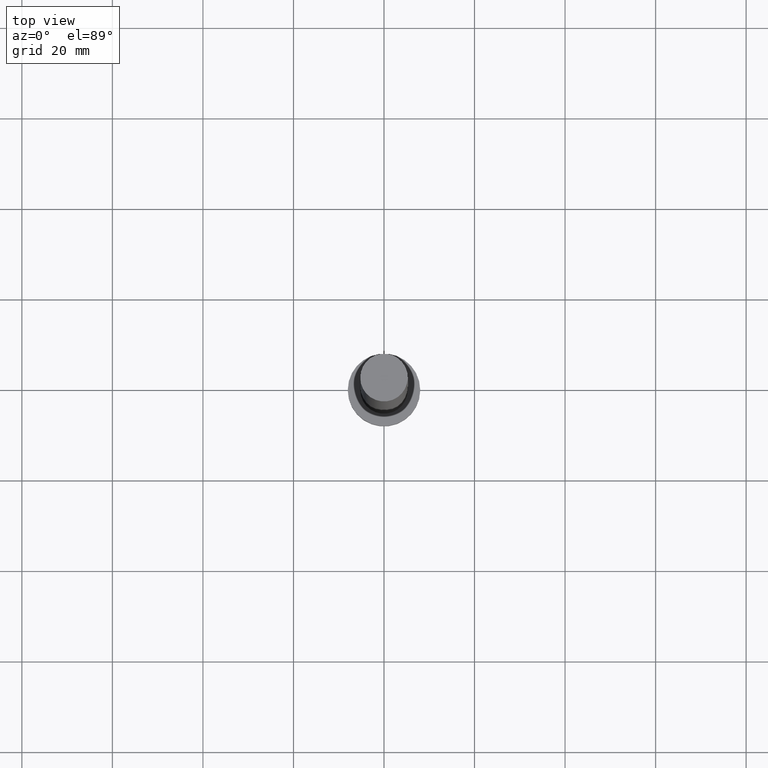
[diagram: clean part render]
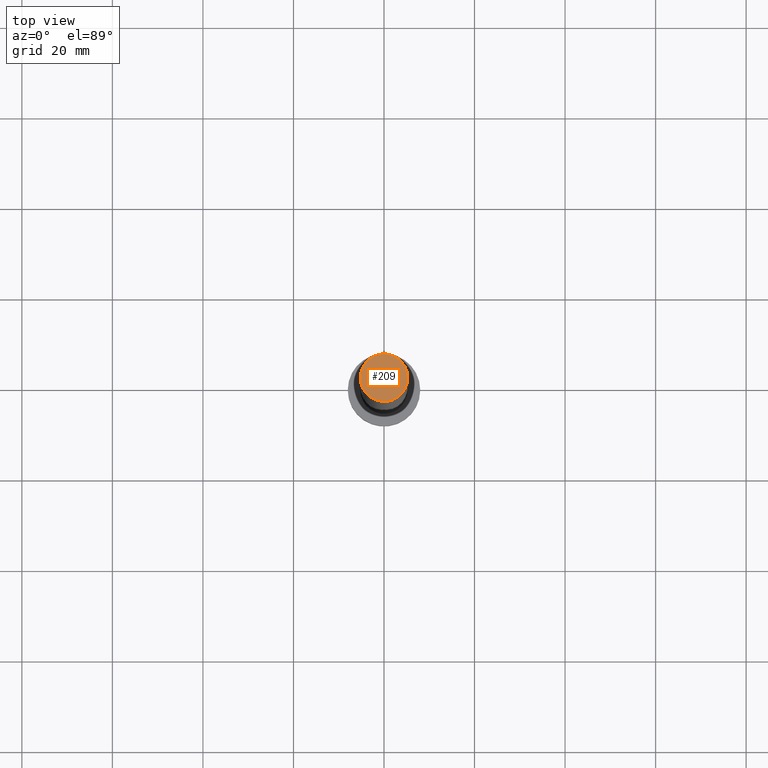
[diagram: same view with one face highlighted and labeled with its STEP entity id]
A machine part, top view. The second image highlights one B-rep face of the part: STEP entity #209.
In plain terms, the highlighted planar face has unit normal (0, 0, 1).
Its self-contained STEP definition (entity closure, byte-faithful):
#9 = CARTESIAN_POINT ( 'NONE',  ( 0.000000000000000000, 0.000000000000000000, 160.0000000000000000 ) ) ;
#11 = ORIENTED_EDGE ( 'NONE', *, *, #114, .T. ) ;
#22 = CARTESIAN_POINT ( 'NONE',  ( 5.250000000000000888, 6.429395695523605139E-16, 160.0000000000000000 ) ) ;
#28 = AXIS2_PLACEMENT_3D ( 'NONE', #92, #212, #237 ) ;
#92 = CARTESIAN_POINT ( 'NONE',  ( 0.000000000000000000, 0.000000000000000000, 160.0000000000000000 ) ) ;
#114 = EDGE_CURVE ( 'NONE', #245, #124, #250, .T. ) ;
#115 = AXIS2_PLACEMENT_3D ( 'NONE', #169, #145, #187 ) ;
#122 = ORIENTED_EDGE ( 'NONE', *, *, #132, .T. ) ;
#124 = VERTEX_POINT ( 'NONE', #22 ) ;
#132 = EDGE_CURVE ( 'NONE', #124, #245, #156, .T. ) ;
#145 = DIRECTION ( 'NONE',  ( 0.000000000000000000, 0.000000000000000000, 1.000000000000000000 ) ) ;
#156 = CIRCLE ( 'NONE', #115, 5.250000000000000888 ) ;
#169 = CARTESIAN_POINT ( 'NONE',  ( 0.000000000000000000, 0.000000000000000000, 160.0000000000000000 ) ) ;
#175 = DIRECTION ( 'NONE',  ( 0.000000000000000000, 0.000000000000000000, 1.000000000000000000 ) ) ;
#179 = FACE_OUTER_BOUND ( 'NONE', #246, .T. ) ;
#187 = DIRECTION ( 'NONE',  ( 1.000000000000000000, 0.000000000000000000, 0.000000000000000000 ) ) ;
#194 = PLANE ( 'NONE',  #202 ) ;
#202 = AXIS2_PLACEMENT_3D ( 'NONE', #9, #175, #242 ) ;
#209 = ADVANCED_FACE ( 'NONE', ( #179 ), #194, .T. ) ;
#212 = DIRECTION ( 'NONE',  ( 0.000000000000000000, 0.000000000000000000, 1.000000000000000000 ) ) ;
#217 = CARTESIAN_POINT ( 'NONE',  ( -5.250000000000000888, 0.000000000000000000, 160.0000000000000000 ) ) ;
#237 = DIRECTION ( 'NONE',  ( 1.000000000000000000, 0.000000000000000000, 0.000000000000000000 ) ) ;
#242 = DIRECTION ( 'NONE',  ( 1.000000000000000000, 0.000000000000000000, -0.000000000000000000 ) ) ;
#245 = VERTEX_POINT ( 'NONE', #217 ) ;
#246 = EDGE_LOOP ( 'NONE', ( #11, #122 ) ) ;
#250 = CIRCLE ( 'NONE', #28, 5.250000000000000888 ) ;